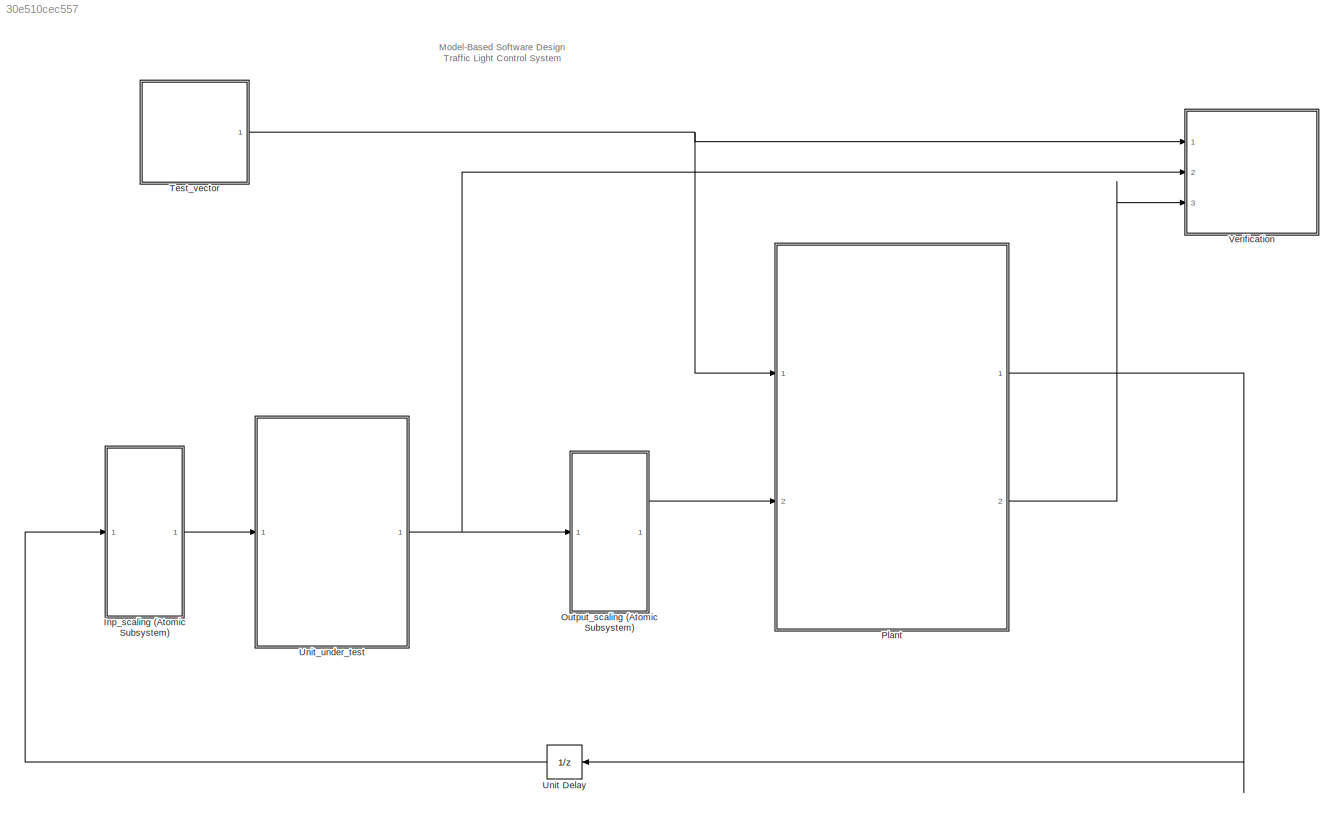
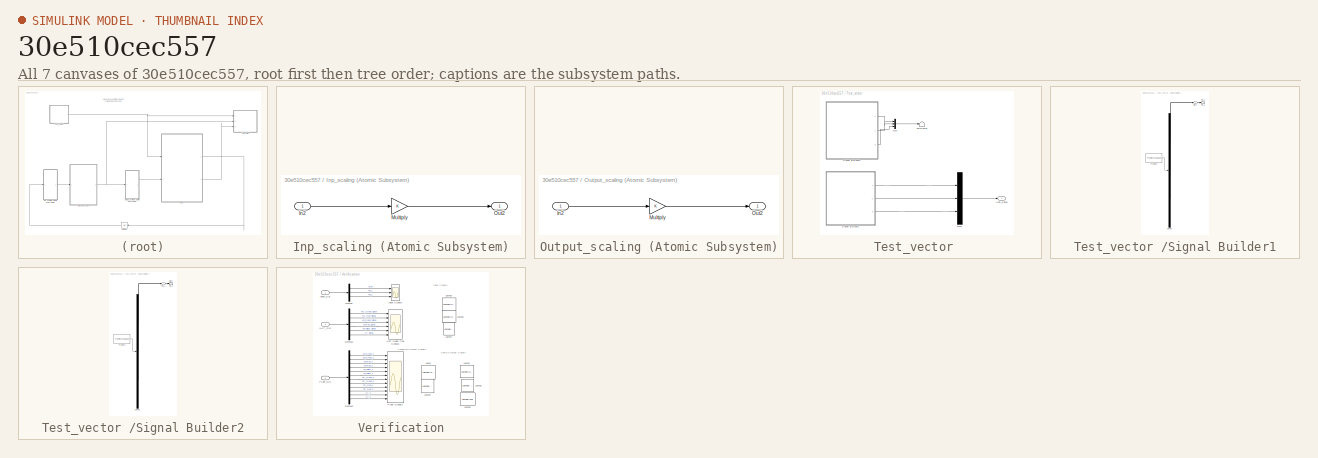
[diagram: thumbnail index - all 7 canvases of the model, root first then tree order]
MODEL slx_30e510cec557
KIND model
CONFIG AbsTol = auto
CONFIG EnableMultiTasking = off
CONFIG FixedStep = 0.25
CONFIG MaxStep = auto
CONFIG MinStep = auto
CONFIG RelTol = 1e-3
CONFIG SampleTimeConstraint = Unconstrained
CONFIG Solver = FixedStepDiscrete
CONFIG SolverName = FixedStepDiscrete
CONFIG StartTime = 0.0
CONFIG StopTime = 40
BLOCK [SubSystem] Inp_scaling (Atomic Subsystem)
  Ports = [1, 1]
  RequestExecContextInheritance = off
  TreatAsAtomicUnit = on
BLOCK [Inport] Inp_scaling (Atomic Subsystem)/In2
  IconDisplay = Port number
BLOCK [Gain] Inp_scaling (Atomic Subsystem)/Multiply
  OutDataTypeStr = Inherit: Inherit via internal rule
  ParamDataTypeStr = Inherit: Inherit via internal rule
  SaturateOnIntegerOverflow = off
BLOCK [Outport] Inp_scaling (Atomic Subsystem)/Out2
  IconDisplay = Port number
BLOCK [SubSystem] Output_scaling (Atomic Subsystem)
  Ports = [1, 1]
  RequestExecContextInheritance = off
  TreatAsAtomicUnit = on
BLOCK [Inport] Output_scaling (Atomic Subsystem)/In2
  IconDisplay = Port number
BLOCK [Gain] Output_scaling (Atomic Subsystem)/Multiply
  OutDataTypeStr = Inherit: Inherit via internal rule
  ParamDataTypeStr = Inherit: Inherit via internal rule
  SaturateOnIntegerOverflow = off
BLOCK [Outport] Output_scaling (Atomic Subsystem)/Out2
  IconDisplay = Port number
BLOCK [ModelReference] Plant
  ModelNameDialog = Plant.slx
  ModelReferenceVersion = 1.40
  Ports = [2, 2]
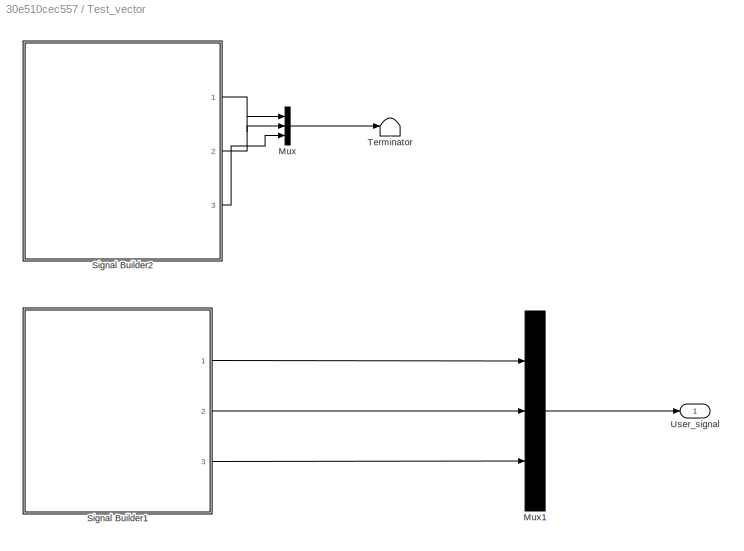
BLOCK [SubSystem] Test_vector 
  Ports = [0, 1]
  RequestExecContextInheritance = off
BLOCK [Mux] Test_vector /Mux
  DisplayOption = bar
  Inputs = 3
  Ports = [3, 1]
BLOCK [Mux] Test_vector /Mux1
  DisplayOption = bar
  Inputs = 3
  Ports = [3, 1]
BLOCK [SubSystem] Test_vector /Signal Builder1
  ClipboardFcn = sigbuilder_block('clipboard');
  CloseFcn = sigbuilder_block('close');
  ContinueFcn = sigbuilder_block('continue');
  CopyFcn = sigbuilder_block('copy');
  DeleteFcn = sigbuilder_block('delete');
  LoadFcn = sigbuilder_block('load');
  MaskHideContents = on
  ModelCloseFcn = sigbuilder_block('modelClose');
  NameChangeFcn = sigbuilder_block('namechange');
  OpenFcn = sigbuilder_block('open',[5.4 51.6 1141.2 490.8 ]);
  PauseFcn = sigbuilder_block('pause');
  Ports = [0, 3]
  PreSaveFcn = sigbuilder_block('preSave');
  RequestExecContextInheritance = off
  StartFcn = sigbuilder_block('start');
  StopFcn = sigbuilder_block('stop');
  Tag = STV Subsys
BLOCK [Demux] Test_vector /Signal Builder1/Demux
  Outputs = 3
  Ports = [1, 3]
  Tag = STV Demux
BLOCK [FromWorkspace] Test_vector /Signal Builder1/FromWs
  SampleTime = 0
  Tag = STV FromWs
  VariableName = tuvar
  ZeroCross = on
BLOCK [Outport] Test_vector /Signal Builder1/PB_1
  IconDisplay = Port number
  Port = 2
  Tag = STV Outport
BLOCK [Outport] Test_vector /Signal Builder1/PB_2
  IconDisplay = Port number
  Port = 3
  Tag = STV Outport
BLOCK [Outport] Test_vector /Signal Builder1/Start
  IconDisplay = Port number
  Tag = STV Outport
BLOCK [SubSystem] Test_vector /Signal Builder2
  ClipboardFcn = sigbuilder_block('clipboard');
  CloseFcn = sigbuilder_block('close');
  ContinueFcn = sigbuilder_block('continue');
  CopyFcn = sigbuilder_block('copy');
  DeleteFcn = sigbuilder_block('delete');
  LoadFcn = sigbuilder_block('load');
  MaskHideContents = on
  ModelCloseFcn = sigbuilder_block('modelClose');
  NameChangeFcn = sigbuilder_block('namechange');
  OpenFcn = sigbuilder_block('open',[5.4 9 1141.2 451.8 ]);
  PauseFcn = sigbuilder_block('pause');
  Ports = [0, 3]
  PreSaveFcn = sigbuilder_block('preSave');
  RequestExecContextInheritance = off
  StartFcn = sigbuilder_block('start');
  StopFcn = sigbuilder_block('stop');
  Tag = STV Subsys
BLOCK [Demux] Test_vector /Signal Builder2/Demux
  Outputs = 3
  Ports = [1, 3]
  Tag = STV Demux
BLOCK [FromWorkspace] Test_vector /Signal Builder2/FromWs
  SampleTime = 0
  Tag = STV FromWs
  VariableName = tuvar
  ZeroCross = on
BLOCK [Outport] Test_vector /Signal Builder2/PB_1
  IconDisplay = Port number
  Tag = STV Outport
BLOCK [Outport] Test_vector /Signal Builder2/PB_2
  IconDisplay = Port number
  Port = 2
  Tag = STV Outport
BLOCK [Outport] Test_vector /Signal Builder2/Start
  IconDisplay = Port number
  Port = 3
  Tag = STV Outport
BLOCK [Terminator] Test_vector /Terminator
BLOCK [Outport] Test_vector /User_signal
  IconDisplay = Port number
BLOCK [UnitDelay] Unit Delay
  HasFrameUpgradeWarning = on
  SampleTime = -1
BLOCK [ModelReference] Unit_under_test
  ModelNameDialog = Contoller.slx
  ModelReferenceVersion = 1.80
  Ports = [1, 1]
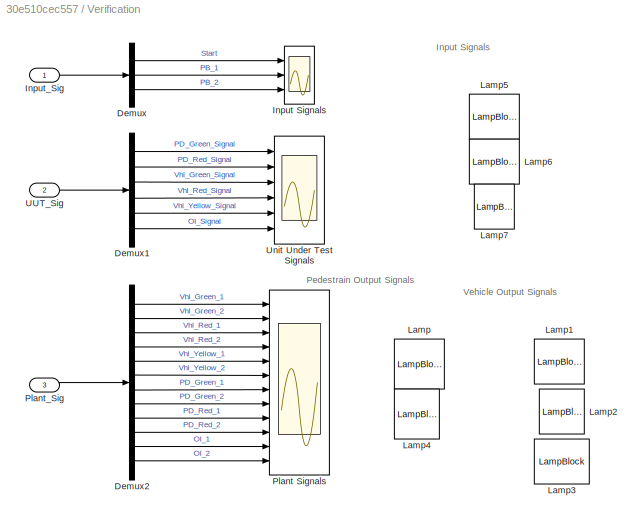
BLOCK [SubSystem] Verification
  Ports = [3]
  RequestExecContextInheritance = off
BLOCK [Demux] Verification/Demux
  DisplayOption = bar
  Outputs = 3
  Ports = [1, 3]
BLOCK [Demux] Verification/Demux1
  DisplayOption = bar
  Outputs = 6
  Ports = [1, 6]
BLOCK [Demux] Verification/Demux2
  DisplayOption = bar
  Outputs = 12
  Ports = [1, 12]
BLOCK [Scope] Verification/Input Signals
  Floating = off
  NumInputPorts = 3
  Ports = [3]
  ScopeSpecificationString = Simulink.scopes.TimeScopeBlockCfg('CurrentConfiguration', extmgr.ConfigurationSet(extmgr.Configuration('Core','General UI',true,'FigureColor',[1 1 1]),extmgr.Configuration('Core','Source UI',true),extmgr.Configuration('Sources','WiredSimulink',true),extmgr.Configuration('Visuals','Time Domain',true,'SerializedDisplays',{struct('MinYLimReal','-0.125','MaxYLimReal','1.125','YLabelReal','','MinYLimMa...<+3079ch>
BLOCK [Inport] Verification/Input_Sig
  IconDisplay = Port number
BLOCK [LampBlock] Verification/Lamp
BLOCK [LampBlock] Verification/Lamp1
BLOCK [LampBlock] Verification/Lamp2
BLOCK [LampBlock] Verification/Lamp3
BLOCK [LampBlock] Verification/Lamp4
BLOCK [LampBlock] Verification/Lamp5
BLOCK [LampBlock] Verification/Lamp6
BLOCK [LampBlock] Verification/Lamp7
BLOCK [Scope] Verification/Plant Signals
  Floating = off
  NumInputPorts = 12
  Ports = [12]
  ScopeSpecificationString = Simulink.scopes.TimeScopeBlockCfg('CurrentConfiguration', extmgr.ConfigurationSet(extmgr.Configuration('Core','General UI',true,'FigureColor',[1 1 1]),extmgr.Configuration('Core','Source UI',true),extmgr.Configuration('Sources','WiredSimulink',true,'DataLoggingVariableName','ScopeData2'),extmgr.Configuration('Visuals','Time Domain',true,'SerializedDisplays',{struct('MinYLimReal','-0.125','MaxYLimR...<+10998ch>
BLOCK [Inport] Verification/Plant_Sig
  IconDisplay = Port number
  Port = 3
BLOCK [Inport] Verification/UUT_Sig
  IconDisplay = Port number
  Port = 2
BLOCK [Scope] Verification/Unit Under Test Signals
  Floating = off
  NumInputPorts = 6
  Ports = [6]
  ScopeSpecificationString = Simulink.scopes.TimeScopeBlockCfg('CurrentConfiguration', extmgr.ConfigurationSet(extmgr.Configuration('Core','General UI',true,'FigureColor',[1 1 1]),extmgr.Configuration('Core','Source UI',true),extmgr.Configuration('Sources','WiredSimulink',true,'DataLoggingVariableName','ScopeData1'),extmgr.Configuration('Visuals','Time Domain',true,'SerializedDisplays',{struct('MinYLimReal','-0.125','MaxYLimR...<+5820ch>
ANNOTATION (root): Model-Based Software Design Traffic Light Control System
ANNOTATION Verification: Input Signals
ANNOTATION Verification: Pedestrain Output Signals
ANNOTATION Verification: Vehicle Output Signals
LINE Inp_scaling (Atomic Subsystem)/In2:1 -> Inp_scaling (Atomic Subsystem)/Multiply:1
LINE Inp_scaling (Atomic Subsystem)/Multiply:1 -> Inp_scaling (Atomic Subsystem)/Out2:1
LINE Inp_scaling (Atomic Subsystem):1 -> Unit_under_test:1
LINE Output_scaling (Atomic Subsystem)/In2:1 -> Output_scaling (Atomic Subsystem)/Multiply:1
LINE Output_scaling (Atomic Subsystem)/Multiply:1 -> Output_scaling (Atomic Subsystem)/Out2:1
LINE Output_scaling (Atomic Subsystem):1 -> Plant:2
LINE Plant:1 -> Unit Delay:1
LINE Plant:2 -> Verification:3
LINE Test_vector /Mux1:1 -> Test_vector /User_signal:1
LINE Test_vector /Mux:1 -> Test_vector /Terminator:1
LINE Test_vector /Signal Builder1:1 -> Test_vector /Mux1:1
LINE Test_vector /Signal Builder1:2 -> Test_vector /Mux1:2
LINE Test_vector /Signal Builder1:3 -> Test_vector /Mux1:3
LINE Test_vector /Signal Builder2:1 -> Test_vector /Mux:1
LINE Test_vector /Signal Builder2:2 -> Test_vector /Mux:2
LINE Test_vector /Signal Builder2:3 -> Test_vector /Mux:3
NET Test_vector :1 -> Plant:1, Verification:1
LINE Unit Delay:1 -> Inp_scaling (Atomic Subsystem):1
NET Unit_under_test:1 -> Output_scaling (Atomic Subsystem):1, Verification:2
LINE Verification/Demux1:1 -> Verification/Unit Under Test Signals:1
LINE Verification/Demux1:2 -> Verification/Unit Under Test Signals:2
LINE Verification/Demux1:3 -> Verification/Unit Under Test Signals:3
LINE Verification/Demux1:4 -> Verification/Unit Under Test Signals:4
LINE Verification/Demux1:5 -> Verification/Unit Under Test Signals:5
LINE Verification/Demux1:6 -> Verification/Unit Under Test Signals:6
LINE Verification/Demux2:1 -> Verification/Plant Signals:1
LINE Verification/Demux2:10 -> Verification/Plant Signals:10
LINE Verification/Demux2:11 -> Verification/Plant Signals:11
LINE Verification/Demux2:12 -> Verification/Plant Signals:12
LINE Verification/Demux2:2 -> Verification/Plant Signals:2
LINE Verification/Demux2:3 -> Verification/Plant Signals:3
LINE Verification/Demux2:4 -> Verification/Plant Signals:4
LINE Verification/Demux2:5 -> Verification/Plant Signals:5
LINE Verification/Demux2:6 -> Verification/Plant Signals:6
LINE Verification/Demux2:7 -> Verification/Plant Signals:7
LINE Verification/Demux2:8 -> Verification/Plant Signals:8
LINE Verification/Demux2:9 -> Verification/Plant Signals:9
LINE Verification/Demux:1 -> Verification/Input Signals:1
LINE Verification/Demux:2 -> Verification/Input Signals:2
LINE Verification/Demux:3 -> Verification/Input Signals:3
LINE Verification/Input_Sig:1 -> Verification/Demux:1
LINE Verification/Plant_Sig:1 -> Verification/Demux2:1
LINE Verification/UUT_Sig:1 -> Verification/Demux1:1
note: NET lines group one-source signal fan-out (src -> all destinations, sorted); 1:1 wires keep LINE
